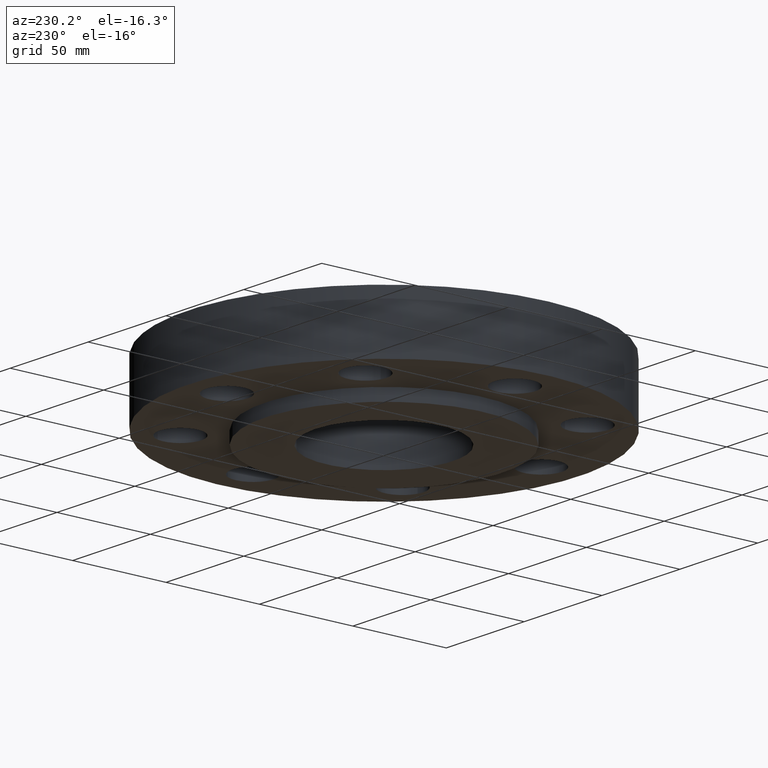
[diagram: clean part render]
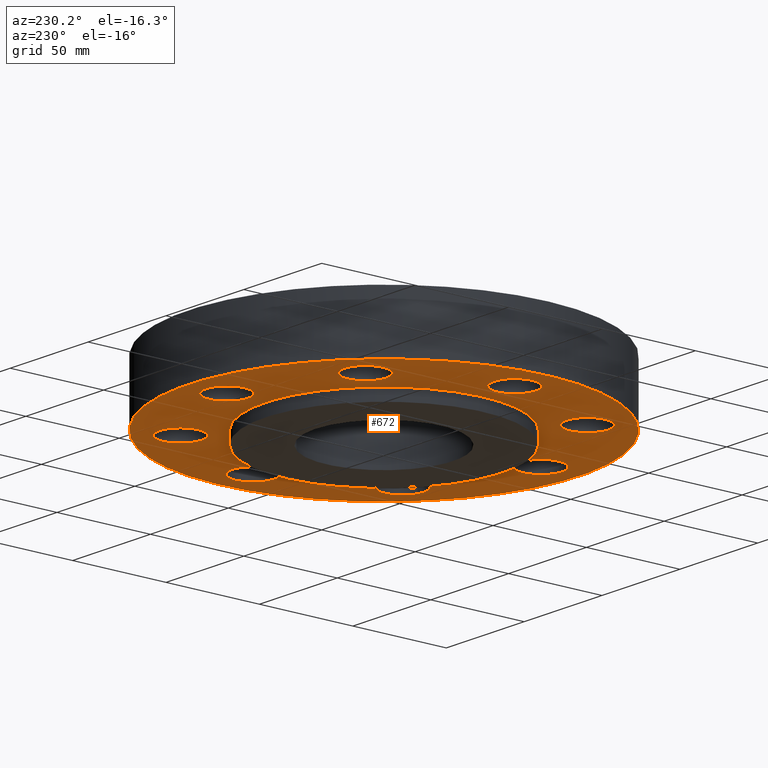
[diagram: same view with one face highlighted and labeled with its STEP entity id]
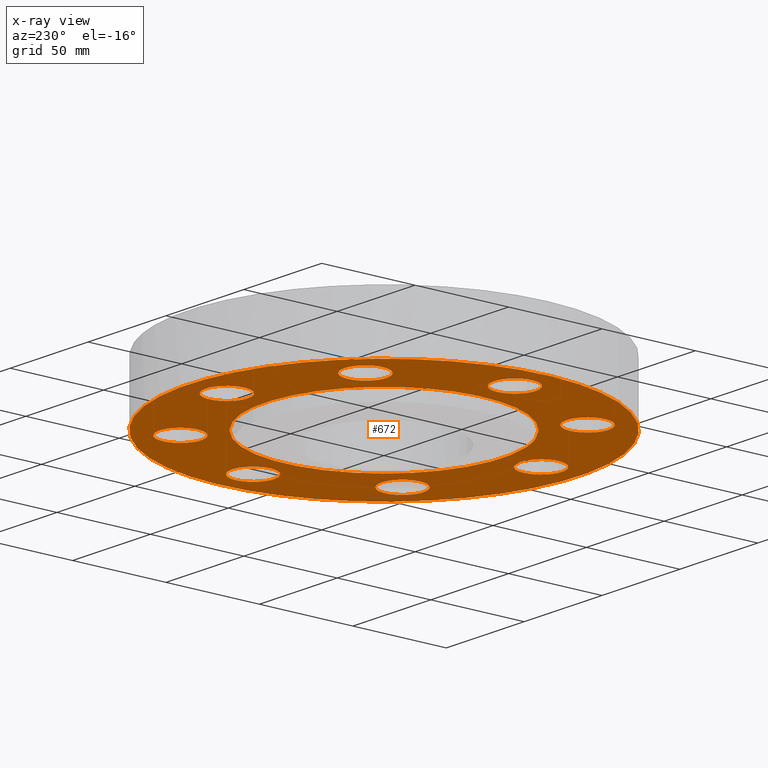
[diagram: x-ray of the same camera — body ghosted, the highlighted face saturated]
A machine part, auxiliary view. The second image highlights one B-rep face of the part: STEP entity #672.
The next image is the same camera in x-ray: the body ghosted, the highlighted face saturated — about 0% of this face is hidden behind the body in this view.
In plain terms, the highlighted planar face has unit normal (0, 0, -1).
Its self-contained STEP definition (entity closure, byte-faithful):
#379=AXIS2_PLACEMENT_3D('Circle Axis2P3D',#377,#378,$) ;
#504=AXIS2_PLACEMENT_3D('Plane Axis2P3D',#501,#502,#503) ;
#508=AXIS2_PLACEMENT_3D('Circle Axis2P3D',#506,#507,$) ;
#517=AXIS2_PLACEMENT_3D('Circle Axis2P3D',#515,#516,$) ;
#526=AXIS2_PLACEMENT_3D('Circle Axis2P3D',#524,#525,$) ;
#535=AXIS2_PLACEMENT_3D('Circle Axis2P3D',#533,#534,$) ;
#548=AXIS2_PLACEMENT_3D('Circle Axis2P3D',#546,#547,$) ;
#557=AXIS2_PLACEMENT_3D('Circle Axis2P3D',#555,#556,$) ;
#566=AXIS2_PLACEMENT_3D('Circle Axis2P3D',#564,#565,$) ;
#575=AXIS2_PLACEMENT_3D('Circle Axis2P3D',#573,#574,$) ;
#584=AXIS2_PLACEMENT_3D('Circle Axis2P3D',#582,#583,$) ;
#593=AXIS2_PLACEMENT_3D('Circle Axis2P3D',#591,#592,$) ;
#602=AXIS2_PLACEMENT_3D('Circle Axis2P3D',#600,#601,$) ;
#611=AXIS2_PLACEMENT_3D('Circle Axis2P3D',#609,#610,$) ;
#620=AXIS2_PLACEMENT_3D('Circle Axis2P3D',#618,#619,$) ;
#629=AXIS2_PLACEMENT_3D('Circle Axis2P3D',#627,#628,$) ;
#638=AXIS2_PLACEMENT_3D('Circle Axis2P3D',#636,#637,$) ;
#647=AXIS2_PLACEMENT_3D('Circle Axis2P3D',#645,#646,$) ;
#656=AXIS2_PLACEMENT_3D('Circle Axis2P3D',#654,#655,$) ;
#665=AXIS2_PLACEMENT_3D('Circle Axis2P3D',#663,#664,$) ;
#374=CARTESIAN_POINT('Vertex',(-1.19856384652,-2.19395640473,-3.04399025671E-011)) ;
#377=CARTESIAN_POINT('Axis2P3D Location',(0.,0.,-3.04399025671E-011)) ;
#381=CARTESIAN_POINT('Vertex',(1.19856384652,2.19395640473,-3.04399025671E-011)) ;
#409=CARTESIAN_POINT('Control Point',(1.19856384652,2.19395640473,-3.04399025671E-011)) ;
#410=CARTESIAN_POINT('Control Point',(1.54318971269,2.00568643598,-2.89178794646E-011)) ;
#411=CARTESIAN_POINT('Control Point',(1.85084885694,1.74974933664,-2.73958563621E-011)) ;
#412=CARTESIAN_POINT('Control Point',(2.10376613764,1.43576887778,-2.58738682273E-011)) ;
#413=CARTESIAN_POINT('Control Point',(2.47286138162,0.725557295008,-2.28298220223E-011)) ;
#414=CARTESIAN_POINT('Control Point',(2.54600739901,-0.0714881563803,-1.97857758174E-011)) ;
#415=CARTESIAN_POINT('Control Point',(2.50282921165,-0.472345392258,-1.82637876826E-011)) ;
#416=CARTESIAN_POINT('Control Point',(2.26162353532,-1.23553056844,-1.52197414776E-011)) ;
#417=CARTESIAN_POINT('Control Point',(1.74974933664,-1.85084885694,-1.21756952727E-011)) ;
#418=CARTESIAN_POINT('Control Point',(1.43576887779,-2.10376613764,-1.06537071378E-011)) ;
#419=CARTESIAN_POINT('Control Point',(0.725557295011,-2.47286138162,-7.60966093288E-012)) ;
#420=CARTESIAN_POINT('Control Point',(-0.0714881563776,-2.54600739901,-4.56561472793E-012)) ;
#421=CARTESIAN_POINT('Control Point',(-0.472345392255,-2.50282921165,-3.0436265931E-012)) ;
#422=CARTESIAN_POINT('Control Point',(-0.853937980346,-2.38222637349,-1.52160349063E-012)) ;
#423=CARTESIAN_POINT('Control Point',(-1.19856384652,-2.19395640473,4.19611851827E-016)) ;
#501=CARTESIAN_POINT('Axis2P3D Location',(0.,2.50000000001,0.)) ;
#506=CARTESIAN_POINT('Axis2P3D Location',(1.1189649382E-015,1.00007491352E-011,0.)) ;
#510=CARTESIAN_POINT('Vertex',(-1.97763034678,-3.62002806781,0.)) ;
#512=CARTESIAN_POINT('Vertex',(1.97763034678,3.62002806783,0.)) ;
#515=CARTESIAN_POINT('Axis2P3D Location',(-1.1189649382E-015,9.99963017027E-012,0.)) ;
#524=CARTESIAN_POINT('Axis2P3D Location',(3.30999999999,-2.81139940724E-012,0.)) ;
#528=CARTESIAN_POINT('Vertex',(3.69613632721,-0.21094723699,0.)) ;
#530=CARTESIAN_POINT('Vertex',(2.92386367279,0.21094723701,0.)) ;
#533=CARTESIAN_POINT('Axis2P3D Location',(3.31000000001,2.28117787127E-011,0.)) ;
#546=CARTESIAN_POINT('Axis2P3D Location',(2.34052344572,-2.34052344573,0.)) ;
#550=CARTESIAN_POINT('Vertex',(2.216646052,-1.91832160855,0.)) ;
#552=CARTESIAN_POINT('Vertex',(2.46440083947,-2.76272528291,0.)) ;
#555=CARTESIAN_POINT('Axis2P3D Location',(2.34052344574,-2.34052344573,0.)) ;
#564=CARTESIAN_POINT('Axis2P3D Location',(-3.49676543189E-017,-3.31000000003,0.)) ;
#568=CARTESIAN_POINT('Vertex',(0.210947237,-2.92386367278,0.)) ;
#570=CARTESIAN_POINT('Vertex',(-0.210947237,-3.69613632727,0.)) ;
#573=CARTESIAN_POINT('Axis2P3D Location',(3.49676543189E-017,-3.31000000003,0.)) ;
#582=CARTESIAN_POINT('Axis2P3D Location',(-2.34052344574,-2.34052344574,0.)) ;
#586=CARTESIAN_POINT('Vertex',(-1.91832160856,-2.21664605207,0.)) ;
#588=CARTESIAN_POINT('Vertex',(-2.76272528292,-2.46440083946,0.)) ;
#591=CARTESIAN_POINT('Axis2P3D Location',(-2.34052344575,-2.34052344572,0.)) ;
#600=CARTESIAN_POINT('Axis2P3D Location',(-3.31000000001,-2.81139940724E-012,0.)) ;
#604=CARTESIAN_POINT('Vertex',(-2.92386367279,-0.21094723699,0.)) ;
#606=CARTESIAN_POINT('Vertex',(-3.69613632721,0.21094723701,0.)) ;
#609=CARTESIAN_POINT('Axis2P3D Location',(-3.30999999999,2.28117787127E-011,0.)) ;
#618=CARTESIAN_POINT('Axis2P3D Location',(-2.34052344574,2.34052344575,0.)) ;
#622=CARTESIAN_POINT('Vertex',(-2.216646052,1.91832160857,0.)) ;
#624=CARTESIAN_POINT('Vertex',(-2.46440083947,2.76272528293,0.)) ;
#627=CARTESIAN_POINT('Axis2P3D Location',(-2.34052344574,2.34052344575,0.)) ;
#636=CARTESIAN_POINT('Axis2P3D Location',(-1.28117289306E-011,3.31000000002,0.)) ;
#640=CARTESIAN_POINT('Vertex',(-0.210947237,2.9238636728,0.)) ;
#642=CARTESIAN_POINT('Vertex',(0.210947237,3.69613632722,0.)) ;
#645=CARTESIAN_POINT('Axis2P3D Location',(1.28117289306E-011,3.31,0.)) ;
#654=CARTESIAN_POINT('Axis2P3D Location',(2.34052344572,2.34052344575,0.)) ;
#658=CARTESIAN_POINT('Vertex',(1.91832160856,2.21664605201,0.)) ;
#660=CARTESIAN_POINT('Vertex',(2.76272528292,2.46440083941,0.)) ;
#663=CARTESIAN_POINT('Axis2P3D Location',(2.34052344573,2.34052344573,0.)) ;
#378=DIRECTION('Axis2P3D Direction',(0.,0.,-0.0393700787402)) ;
#502=DIRECTION('Axis2P3D Direction',(0.,0.,-0.0393700787402)) ;
#503=DIRECTION('Axis2P3D XDirection',(0.0393700787402,0.,0.)) ;
#507=DIRECTION('Axis2P3D Direction',(0.,0.,-0.0393700787402)) ;
#516=DIRECTION('Axis2P3D Direction',(0.,0.,-0.0393700787402)) ;
#525=DIRECTION('Axis2P3D Direction',(0.,0.,-0.0393700787402)) ;
#534=DIRECTION('Axis2P3D Direction',(0.,0.,-0.0393700787402)) ;
#547=DIRECTION('Axis2P3D Direction',(0.,0.,-0.0393700787402)) ;
#556=DIRECTION('Axis2P3D Direction',(0.,0.,-0.0393700787402)) ;
#565=DIRECTION('Axis2P3D Direction',(0.,0.,-0.0393700787402)) ;
#574=DIRECTION('Axis2P3D Direction',(0.,0.,-0.0393700787402)) ;
#583=DIRECTION('Axis2P3D Direction',(0.,0.,-0.0393700787402)) ;
#592=DIRECTION('Axis2P3D Direction',(0.,0.,-0.0393700787402)) ;
#601=DIRECTION('Axis2P3D Direction',(0.,0.,-0.0393700787402)) ;
#610=DIRECTION('Axis2P3D Direction',(0.,0.,-0.0393700787402)) ;
#619=DIRECTION('Axis2P3D Direction',(0.,0.,-0.0393700787402)) ;
#628=DIRECTION('Axis2P3D Direction',(0.,0.,-0.0393700787402)) ;
#637=DIRECTION('Axis2P3D Direction',(0.,0.,-0.0393700787402)) ;
#646=DIRECTION('Axis2P3D Direction',(0.,0.,-0.0393700787402)) ;
#655=DIRECTION('Axis2P3D Direction',(0.,0.,-0.0393700787402)) ;
#664=DIRECTION('Axis2P3D Direction',(0.,0.,-0.0393700787402)) ;
#521=ORIENTED_EDGE('',*,*,#514,.T.) ;
#522=ORIENTED_EDGE('',*,*,#519,.T.) ;
#539=ORIENTED_EDGE('',*,*,#532,.F.) ;
#540=ORIENTED_EDGE('',*,*,#537,.F.) ;
#543=ORIENTED_EDGE('',*,*,#424,.F.) ;
#544=ORIENTED_EDGE('',*,*,#383,.F.) ;
#561=ORIENTED_EDGE('',*,*,#554,.F.) ;
#562=ORIENTED_EDGE('',*,*,#559,.F.) ;
#579=ORIENTED_EDGE('',*,*,#572,.F.) ;
#580=ORIENTED_EDGE('',*,*,#577,.F.) ;
#597=ORIENTED_EDGE('',*,*,#590,.F.) ;
#598=ORIENTED_EDGE('',*,*,#595,.F.) ;
#615=ORIENTED_EDGE('',*,*,#608,.F.) ;
#616=ORIENTED_EDGE('',*,*,#613,.F.) ;
#633=ORIENTED_EDGE('',*,*,#626,.F.) ;
#634=ORIENTED_EDGE('',*,*,#631,.F.) ;
#651=ORIENTED_EDGE('',*,*,#644,.F.) ;
#652=ORIENTED_EDGE('',*,*,#649,.F.) ;
#669=ORIENTED_EDGE('',*,*,#662,.F.) ;
#670=ORIENTED_EDGE('',*,*,#667,.F.) ;
#541=FACE_BOUND('',#538,.T.) ;
#545=FACE_BOUND('',#542,.T.) ;
#563=FACE_BOUND('',#560,.T.) ;
#581=FACE_BOUND('',#578,.T.) ;
#599=FACE_BOUND('',#596,.T.) ;
#617=FACE_BOUND('',#614,.T.) ;
#635=FACE_BOUND('',#632,.T.) ;
#653=FACE_BOUND('',#650,.T.) ;
#671=FACE_BOUND('',#668,.T.) ;
#672=ADVANCED_FACE('PartBody',(#523,#541,#545,#563,#581,#599,#617,#635,#653,#671),#505,.T.) ;
#408=B_SPLINE_CURVE_WITH_KNOTS('',5,(#409,#410,#411,#412,#413,#414,#415,#416,#417,#418,#419,#420,#421,#422,#423),.UNSPECIFIED.,.F.,.U.,(6,3,3,3,6),(-99.7455667518,-49.8727833759,0.,49.8727833759,99.7455667518),.UNSPECIFIED.) ;
#380=CIRCLE('generated circle',#379,2.50000000001) ;
#509=CIRCLE('generated circle',#508,4.12500000004) ;
#518=CIRCLE('generated circle',#517,4.12500000004) ;
#527=CIRCLE('generated circle',#526,0.439999999988) ;
#536=CIRCLE('generated circle',#535,0.439999999988) ;
#549=CIRCLE('generated circle',#548,0.439999999995) ;
#558=CIRCLE('generated circle',#557,0.439999999995) ;
#567=CIRCLE('generated circle',#566,0.44000000002) ;
#576=CIRCLE('generated circle',#575,0.44000000002) ;
#585=CIRCLE('generated circle',#584,0.439999999984) ;
#594=CIRCLE('generated circle',#593,0.439999999984) ;
#603=CIRCLE('generated circle',#602,0.439999999988) ;
#612=CIRCLE('generated circle',#611,0.439999999988) ;
#621=CIRCLE('generated circle',#620,0.439999999995) ;
#630=CIRCLE('generated circle',#629,0.439999999995) ;
#639=CIRCLE('generated circle',#638,0.439999999988) ;
#648=CIRCLE('generated circle',#647,0.439999999988) ;
#657=CIRCLE('generated circle',#656,0.439999999984) ;
#666=CIRCLE('generated circle',#665,0.439999999984) ;
#383=EDGE_CURVE('',#375,#382,#380,.T.) ;
#424=EDGE_CURVE('',#382,#375,#408,.T.) ;
#514=EDGE_CURVE('',#511,#513,#509,.T.) ;
#519=EDGE_CURVE('',#513,#511,#518,.T.) ;
#532=EDGE_CURVE('',#529,#531,#527,.T.) ;
#537=EDGE_CURVE('',#531,#529,#536,.T.) ;
#554=EDGE_CURVE('',#551,#553,#549,.T.) ;
#559=EDGE_CURVE('',#553,#551,#558,.T.) ;
#572=EDGE_CURVE('',#569,#571,#567,.T.) ;
#577=EDGE_CURVE('',#571,#569,#576,.T.) ;
#590=EDGE_CURVE('',#587,#589,#585,.T.) ;
#595=EDGE_CURVE('',#589,#587,#594,.T.) ;
#608=EDGE_CURVE('',#605,#607,#603,.T.) ;
#613=EDGE_CURVE('',#607,#605,#612,.T.) ;
#626=EDGE_CURVE('',#623,#625,#621,.T.) ;
#631=EDGE_CURVE('',#625,#623,#630,.T.) ;
#644=EDGE_CURVE('',#641,#643,#639,.T.) ;
#649=EDGE_CURVE('',#643,#641,#648,.T.) ;
#662=EDGE_CURVE('',#659,#661,#657,.T.) ;
#667=EDGE_CURVE('',#661,#659,#666,.T.) ;
#520=EDGE_LOOP('',(#521,#522)) ;
#538=EDGE_LOOP('',(#539,#540)) ;
#542=EDGE_LOOP('',(#543,#544)) ;
#560=EDGE_LOOP('',(#561,#562)) ;
#578=EDGE_LOOP('',(#579,#580)) ;
#596=EDGE_LOOP('',(#597,#598)) ;
#614=EDGE_LOOP('',(#615,#616)) ;
#632=EDGE_LOOP('',(#633,#634)) ;
#650=EDGE_LOOP('',(#651,#652)) ;
#668=EDGE_LOOP('',(#669,#670)) ;
#523=FACE_OUTER_BOUND('',#520,.T.) ;
#505=PLANE('',#504) ;
#375=VERTEX_POINT('',#374) ;
#382=VERTEX_POINT('',#381) ;
#511=VERTEX_POINT('',#510) ;
#513=VERTEX_POINT('',#512) ;
#529=VERTEX_POINT('',#528) ;
#531=VERTEX_POINT('',#530) ;
#551=VERTEX_POINT('',#550) ;
#553=VERTEX_POINT('',#552) ;
#569=VERTEX_POINT('',#568) ;
#571=VERTEX_POINT('',#570) ;
#587=VERTEX_POINT('',#586) ;
#589=VERTEX_POINT('',#588) ;
#605=VERTEX_POINT('',#604) ;
#607=VERTEX_POINT('',#606) ;
#623=VERTEX_POINT('',#622) ;
#625=VERTEX_POINT('',#624) ;
#641=VERTEX_POINT('',#640) ;
#643=VERTEX_POINT('',#642) ;
#659=VERTEX_POINT('',#658) ;
#661=VERTEX_POINT('',#660) ;